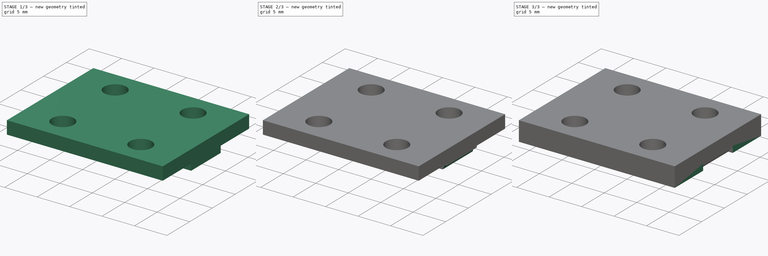
[diagram: build sequence overview — one tinted view per stage of 3, left to right]
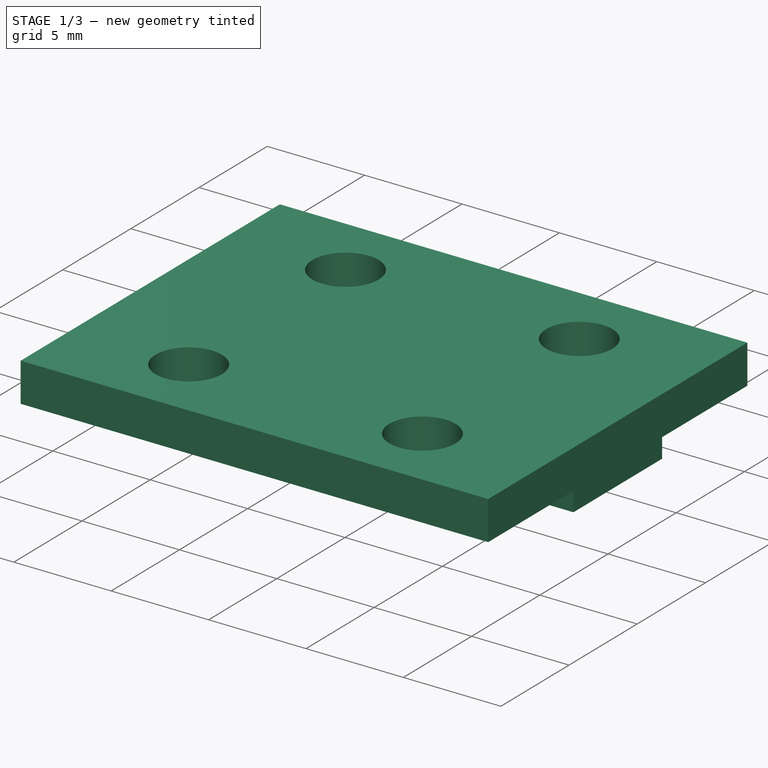
[diagram: stage 1 of 3 — iso view after this stage's code; geometry added in this stage tinted green]
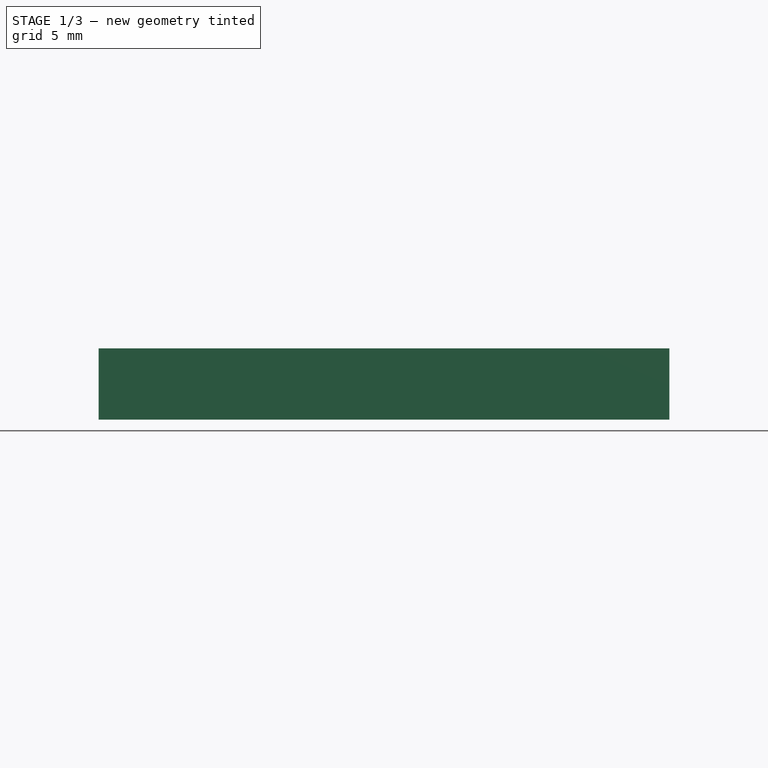
[diagram: stage 1 of 3 — front view after this stage's code; geometry added in this stage tinted green]
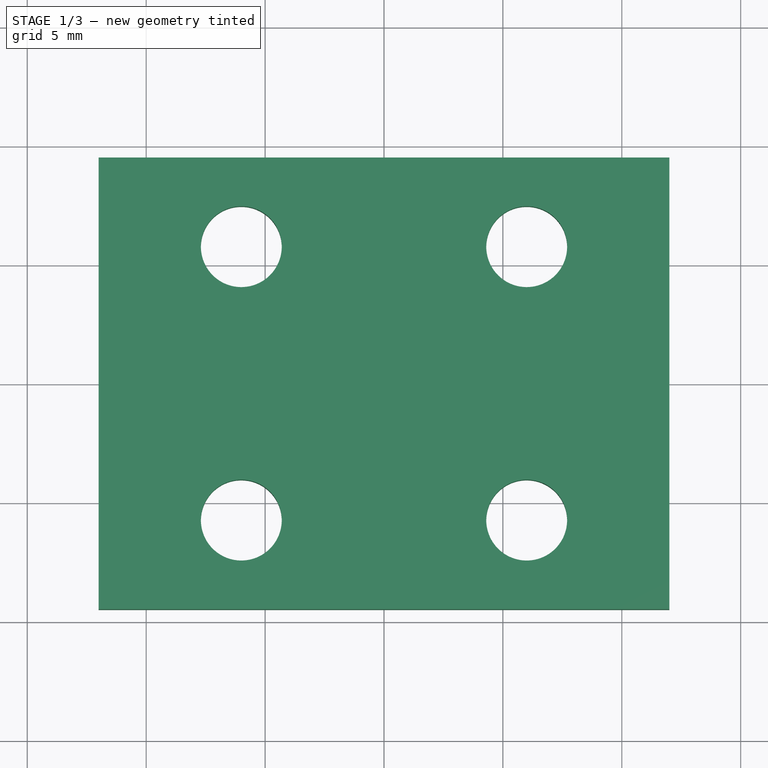
[diagram: stage 1 of 3 — top view after this stage's code; geometry added in this stage tinted green]
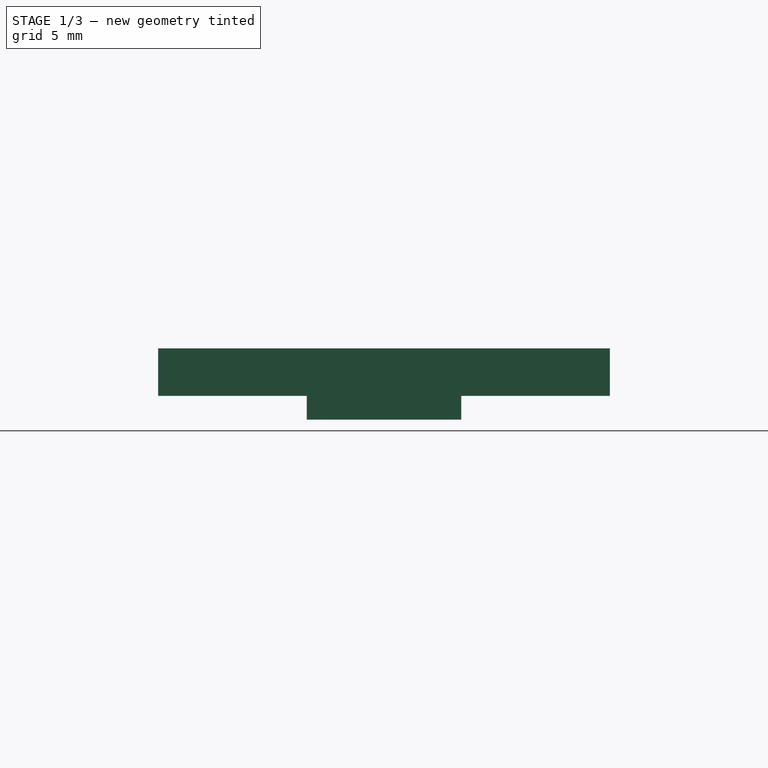
[diagram: stage 1 of 3 — right view after this stage's code; geometry added in this stage tinted green]
FCSTD DOCUMENT  (FreeCAD 0.19R17331 (Git))
Label: trabitas_gt2
License: All rights reserved
LicenseURL: http://en.wikipedia.org/wiki/All_rights_reserved
objects: Sketcher::SketchObject×5, PartDesign::Pocket×3, PartDesign::Pad×2, PartDesign::Body×2, PartDesign::LinearPattern×1
note: 18 computed .brp shape members not serialized (recipe doc carries the construction recipe); baked Part::Feature solids carry a one-line shape summary decoded from their .brp

FEATURE [PartDesign::Body] Body  label="base"
  Group = -> [Sketch,Pad,Sketch001,Pocket]
  Origin = -> Origin
  Placement = pos=(0,-26,0) rot=(0,0,1;0rad)
  Tip = -> Pocket
FEATURE [Sketcher::SketchObject] Sketch002
  MapMode = 5
  Support = -> [XY_Plane001]
  sketch-geometry (18):
    g0: LineSegment [constr] StartX=-7.7 StartY=7.45 StartZ=0 EndX=7.7 EndY=7.45 EndZ=0
    g1: LineSegment [constr] StartX=7.7 StartY=7.45 StartZ=0 EndX=7.7 EndY=-7.45 EndZ=0
    g2: LineSegment [constr] StartX=7.7 StartY=-7.45 StartZ=0 EndX=-7.7 EndY=-7.45 EndZ=0
    g3: LineSegment [constr] StartX=-7.7 StartY=-7.45 StartZ=0 EndX=-7.7 EndY=7.45 EndZ=0
    g4: Circle CenterX=-6 CenterY=5.75 CenterZ=0 NormalX=0 NormalY=0 NormalZ=1 AngleXU=0 Radius=1.7
    g5: Circle CenterX=6 CenterY=5.75 CenterZ=0 NormalX=0 NormalY=0 NormalZ=1 AngleXU=0 Radius=1.7
    g6: Circle CenterX=-6 CenterY=-5.75 CenterZ=0 NormalX=0 NormalY=0 NormalZ=1 AngleXU=0 Radius=1.7
    g7: Circle CenterX=6 CenterY=-5.75 CenterZ=0 NormalX=0 NormalY=0 NormalZ=1 AngleXU=0 Radius=1.7
    g8: LineSegment StartX=-12 StartY=9.5 StartZ=0 EndX=12 EndY=9.5 EndZ=0
    g9: LineSegment StartX=12 StartY=9.5 StartZ=0 EndX=12 EndY=-9.5 EndZ=0
    g10: LineSegment StartX=12 StartY=-9.5 StartZ=0 EndX=-12 EndY=-9.5 EndZ=0
    g11: LineSegment StartX=-12 StartY=-9.5 StartZ=0 EndX=-12 EndY=9.5 EndZ=0
    g12: LineSegment [constr] StartX=-12 StartY=9.5 StartZ=0 EndX=12 EndY=-9.5 EndZ=0
    g13: LineSegment [constr] StartX=12 StartY=9.5 StartZ=0 EndX=-12 EndY=-9.5 EndZ=0
    g14: LineSegment [constr] StartX=-7.7 StartY=7.45 StartZ=0 EndX=7.7 EndY=-7.45 EndZ=0
    g15: LineSegment [constr] StartX=-7.7 StartY=-7.45 StartZ=0 EndX=7.7 EndY=7.45 EndZ=0
    g16: GeomPoint X=0 Y=0 Z=0
    g17: GeomPoint X=0 Y=0 Z=0
  constraints (46):
    c: Coincident(g0,g1)
    c: Coincident(g1,g2)
    c: Coincident(g2,g3)
    c: Coincident(g3,g0)
    c: Horizontal(g0)
    c: Horizontal(g2)
    c: Vertical(g1)
    c: Vertical(g3)
    c: DistanceX(g0,g0) = 15.4
    c: DistanceY(g1,g1) = 14.9
    c: Tangent(g4,g3)
    c: Tangent(g4,g0)
    c: Tangent(g5,g1)
    c: Tangent(g5,g0)
    c: Tangent(g6,g2)
    c: Tangent(g6,g3)
    c: Tangent(g1,g7)
    c: Tangent(g7,g2)
    c: Equal(g6,g7)
    c: Equal(g7,g5)
    c: Equal(g5,g4)
    c: Diameter(g4) = 3.4
    c: Coincident(g8,g9)
    c: Coincident(g9,g10)
    c: Coincident(g10,g11)
    c: Coincident(g11,g8)
    c: Horizontal(g8)
    c: Horizontal(g10)
    c: Vertical(g9)
    c: Vertical(g11)
    c: DistanceX(g8,g8) = 24
    c: DistanceY(g9,g9) = 19
    c: Coincident(g12,g8)
    c: Coincident(g12,g9)
    c: Coincident(g13,g8)
    c: Coincident(g13,g10)
    c: Coincident(g14,g0)
    c: Coincident(g14,g1)
    c: Coincident(g15,g2)
    c: Coincident(g15,g0)
    c: PointOnObject(g16,g15)
    c: PointOnObject(g17,g13)
    c: PointOnObject(g17,g12)
    c: PointOnObject(g16,g14)
    c: Coincident(g16,g17)
    c: Coincident(g16,g-1)
FEATURE [PartDesign::Pad] Pad001
  Length = 3
  Length2 = 100
  Profile = -> Sketch002
  Type = 0
FEATURE [Sketcher::SketchObject] Sketch003
  MapMode = 5
  Support = -> [XY_Plane001]
  sketch-geometry (20):
    g0: LineSegment StartX=-12 StartY=9.5 StartZ=0 EndX=12 EndY=9.5 EndZ=0
    g1: LineSegment [constr] StartX=12 StartY=9.5 StartZ=0 EndX=12 EndY=-9.5 EndZ=0
    g2: LineSegment StartX=12 StartY=-9.5 StartZ=0 EndX=-12 EndY=-9.5 EndZ=0
    g3: LineSegment [constr] StartX=-12 StartY=-9.5 StartZ=0 EndX=-12 EndY=9.5 EndZ=0
    g4: LineSegment [constr] StartX=-12 StartY=9.5 StartZ=0 EndX=12 EndY=-9.5 EndZ=0
    g5: LineSegment [constr] StartX=12 StartY=9.5 StartZ=0 EndX=-12 EndY=-9.5 EndZ=0
    g6: GeomPoint X=0 Y=0 Z=0
    g7: GeomPoint X=0 Y=0 Z=0
    g8: LineSegment StartX=-12 StartY=3.25 StartZ=0 EndX=12 EndY=3.25 EndZ=0
    g9: LineSegment [constr] StartX=12 StartY=3.25 StartZ=0 EndX=12 EndY=-3.25 EndZ=0
    g10: LineSegment StartX=12 StartY=-3.25 StartZ=0 EndX=-12 EndY=-3.25 EndZ=0
    g11: LineSegment [constr] StartX=-12 StartY=-3.25 StartZ=0 EndX=-12 EndY=3.25 EndZ=0
    g12: LineSegment [constr] StartX=-12 StartY=3.25 StartZ=0 EndX=12 EndY=-3.25 EndZ=0
    g13: LineSegment [constr] StartX=12 StartY=3.25 StartZ=0 EndX=-12 EndY=-3.25 EndZ=0
    g14: GeomPoint X=0 Y=0 Z=0
    g15: GeomPoint X=0 Y=0 Z=0
    g16: LineSegment StartX=-12 StartY=9.5 StartZ=0 EndX=-12 EndY=3.25 EndZ=0
    g17: LineSegment StartX=-12 StartY=-3.25 StartZ=0 EndX=-12 EndY=-9.5 EndZ=0
    g18: LineSegment StartX=12 StartY=-9.5 StartZ=0 EndX=12 EndY=-3.25 EndZ=0
    g19: LineSegment StartX=12 StartY=3.25 StartZ=0 EndX=12 EndY=9.5 EndZ=0
  constraints (44):
    c: Coincident(g0,g1)
    c: Coincident(g1,g2)
    c: Coincident(g2,g3)
    c: Coincident(g3,g0)
    c: Horizontal(g0)
    c: Horizontal(g2)
    c: Vertical(g1)
    c: Vertical(g3)
    c: DistanceX(g0,g0) = 24
    c: DistanceY(g1,g1) = 19
    c: Coincident(g4,g0)
    c: Coincident(g4,g1)
    c: Coincident(g5,g0)
    c: Coincident(g5,g2)
    c: PointOnObject(g7,g5)
    c: PointOnObject(g7,g4)
    c: Coincident(g6,g7)
    c: Coincident(g6,g-1)
    c: Coincident(g8,g9)
    c: Coincident(g9,g10)
    c: Coincident(g10,g11)
    c: Coincident(g11,g8)
    c: Horizontal(g8)
    c: Horizontal(g10)
    c: Vertical(g9)
    c: Vertical(g11)
    c: Equal(g0,g8) = 24
    c: Coincident(g12,g8)
    c: Coincident(g12,g9)
    c: Coincident(g13,g8)
    c: Coincident(g13,g10)
    c: PointOnObject(g15,g13)
    c: PointOnObject(g15,g12)
    c: Coincident(g14,g15)
    c: DistanceY(g9,g9) = 6.5
    c: Coincident(g14,g6)
    c: Coincident(g16,g0)
    c: Coincident(g16,g8)
    c: Coincident(g17,g10)
    c: Coincident(g17,g2)
    c: Coincident(g18,g2)
    c: Coincident(g18,g10)
    c: Coincident(g19,g8)
    c: Coincident(g19,g0)
FEATURE [PartDesign::Pocket] Pocket001
  BaseFeature = -> Pad001
  Length = 1
  Length2 = 100
  Profile = -> Sketch003
  Reversed = true
  Type = 0
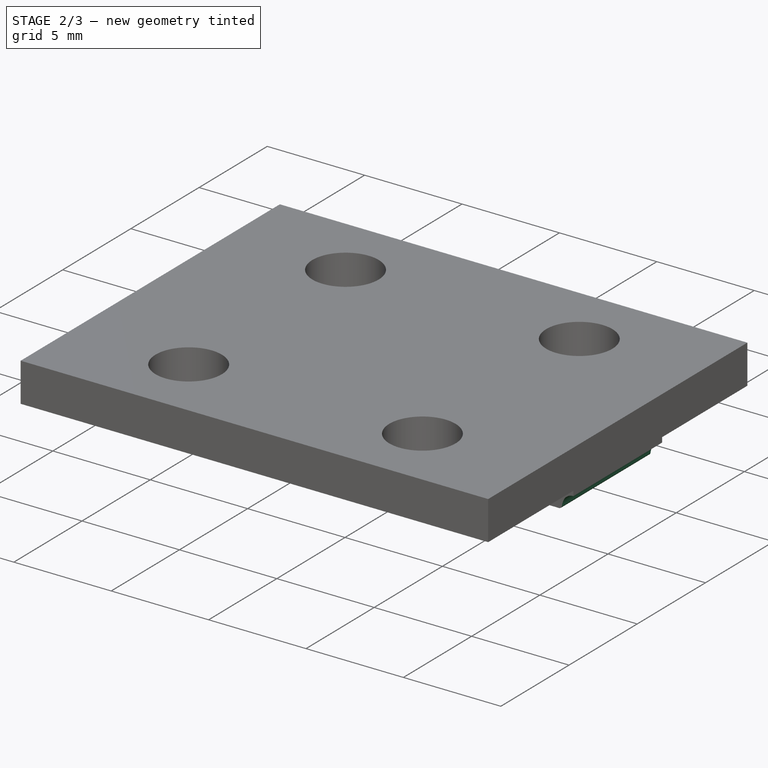
[diagram: stage 2 of 3 — iso view after this stage's code; geometry added in this stage tinted green]
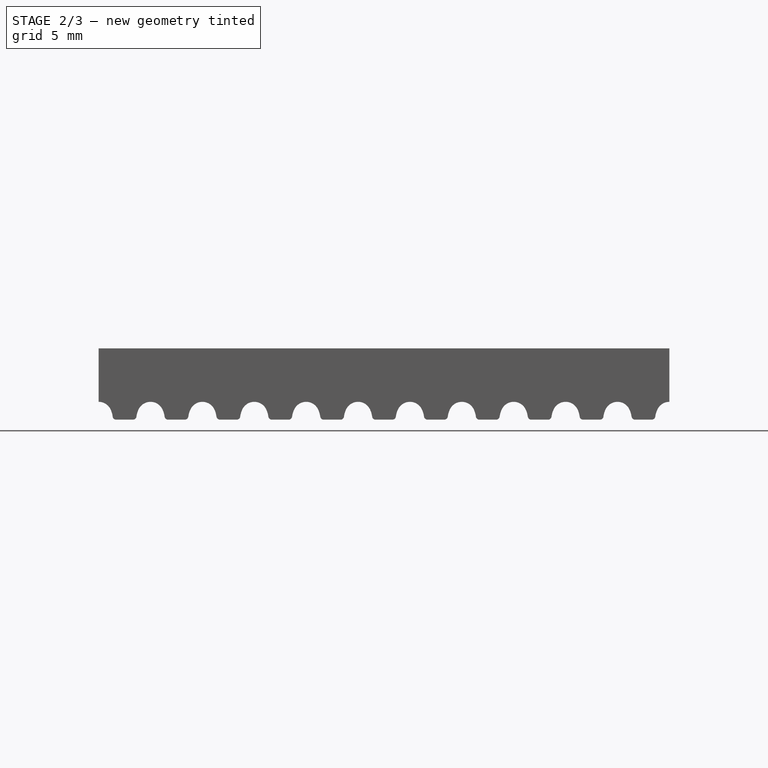
[diagram: stage 2 of 3 — front view after this stage's code; geometry added in this stage tinted green]
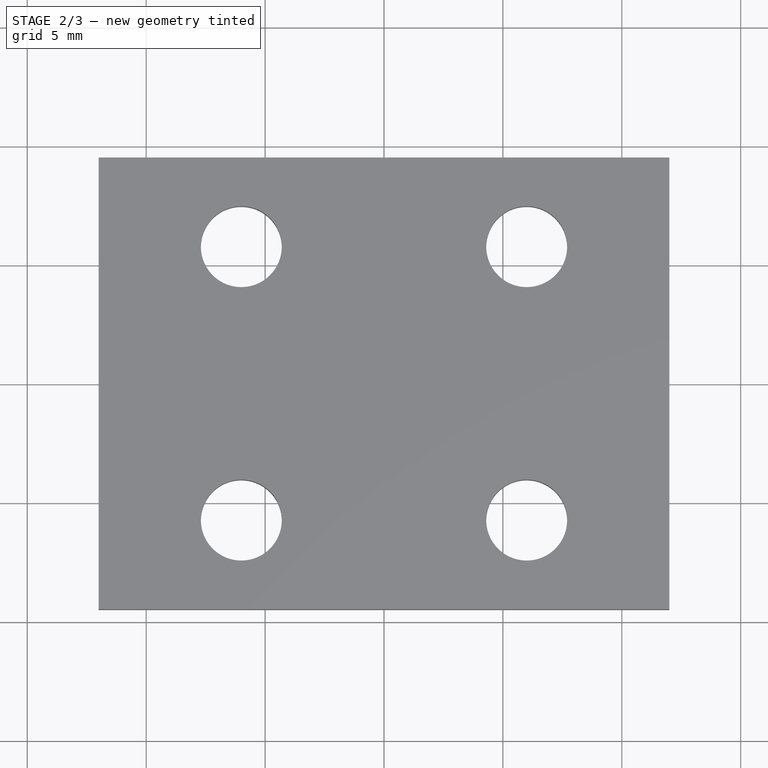
[diagram: stage 2 of 3 — top view after this stage's code; geometry added in this stage tinted green]
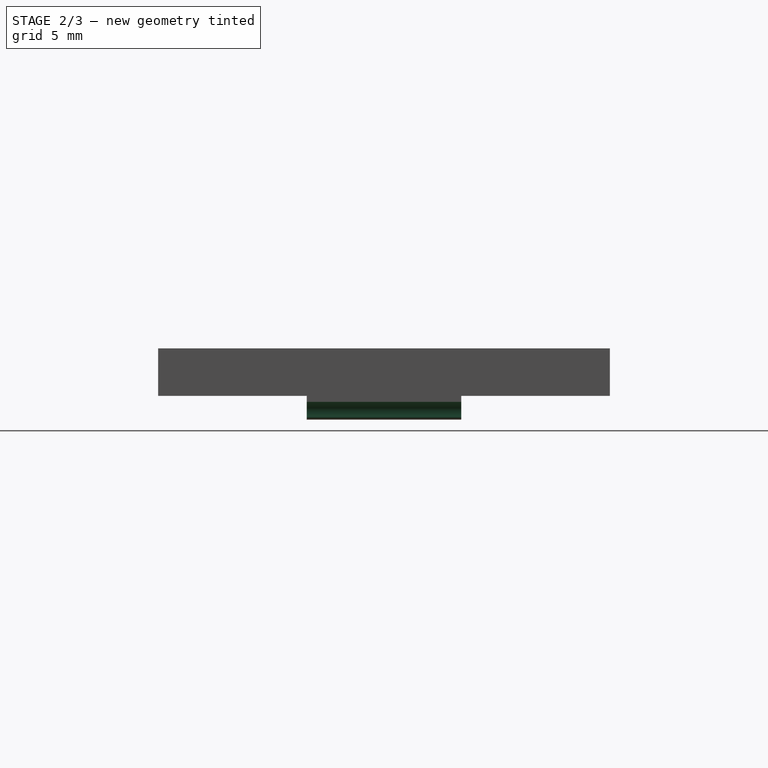
[diagram: stage 2 of 3 — right view after this stage's code; geometry added in this stage tinted green]
FEATURE [Sketcher::SketchObject] Sketch004  label="cuenco_correa"
  ExternalGeometry = -> [Pocket001]
  MapMode = 5
  Placement = pos=(0,0,0) rot=(1,0,0;1.5708rad)
  Support = -> [XZ_Plane001]
  sketch-geometry (12):
    g0: ArcOfCircle CenterX=-12 CenterY=0.195 CenterZ=0 NormalX=0 NormalY=0 NormalZ=1 AngleXU=0 Radius=0.555 StartAngle=0.453598 EndAngle=2.68799
    g1: LineSegment [constr] StartX=-11.2598 StartY=0 StartZ=0 EndX=-12.7402 EndY=0 EndZ=0
    g2: LineSegment [constr] StartX=-12 StartY=0 StartZ=0 EndX=-12 EndY=0.75 EndZ=0
    g3: ArcOfCircle CenterX=-12.4 CenterY=0 CenterZ=0 NormalX=0 NormalY=0 NormalZ=1 AngleXU=0 Radius=1 StartAngle=0.130807 EndAngle=0.453598
    g4: ArcOfCircle CenterX=-11.2598 CenterY=0.15 CenterZ=0 NormalX=0 NormalY=0 NormalZ=1 AngleXU=0 Radius=0.15 StartAngle=3.2724 EndAngle=4.71239
    g5: ArcOfCircle CenterX=-11.6 CenterY=0 CenterZ=0 NormalX=0 NormalY=0 NormalZ=1 AngleXU=0 Radius=1 StartAngle=2.68799 EndAngle=3.01079
    g6: ArcOfCircle CenterX=-12.7402 CenterY=0.15 CenterZ=0 NormalX=0 NormalY=0 NormalZ=1 AngleXU=0 Radius=0.15 StartAngle=4.71239 EndAngle=6.15238
    g7: LineSegment StartX=-12.7402 StartY=0 StartZ=0 EndX=-13 EndY=0 EndZ=0
    g8: LineSegment StartX=-11.2598 StartY=0 StartZ=0 EndX=-11 EndY=0 EndZ=0
    g9: LineSegment StartX=-13 StartY=0 StartZ=0 EndX=-13 EndY=-0.63 EndZ=0
    g10: LineSegment StartX=-13 StartY=-0.63 StartZ=0 EndX=-11 EndY=-0.63 EndZ=0
    g11: LineSegment StartX=-11 StartY=-0.63 StartZ=0 EndX=-11 EndY=0 EndZ=0
  constraints (34):
    c: Radius(g0) = 0.555
    c: PointOnObject(g2,g1)
    c: PointOnObject(g2,g0)
    c: Vertical(g2)
    c: PointOnObject(g0,g2)
    c: DistanceY(g2,g2) = 0.75
    c: PointOnObject(g3,g1)
    c: DistanceX(g3,g2) = 0.4
    c: Tangent(g3,g0) = -1.5708
    c: Tangent(g4,g3) = 1.5708
    c: PointOnObject(g5,g1)
    c: DistanceX(g2,g5) = 0.4
    c: Tangent(g5,g0) = -1.5708
    c: Coincident(g7,g1)
    c: Tangent(g6,g7) = 1.5708
    c: Tangent(g6,g5) = 1.5708
    c: Radius(g4) = 0.15
    c: Radius(g6) = 0.15
    c: Coincident(g1,g6)
    c: Horizontal(g7)
    c: Symmetric(g7,g8,g2)
    c: Horizontal(g1)
    c: DistanceX(g7,g8) = 2
    c: Vertical(g9)
    c: Coincident(g9,g10)
    c: Horizontal(g10)
    c: Coincident(g10,g11)
    c: Coincident(g11,g8)
    c: Vertical(g11)
    c: DistanceY(g11,g11) = 0.63
    c: Tangent(g8,g4) = -1.5708
    c: Coincident(g4,g1)
    c: Coincident(g9,g7)
    c: Coincident(g2,g-3)
FEATURE [PartDesign::Pocket] Pocket002  label="pocket_cuencos_correa"
  BaseFeature = -> Pocket001
  Length = 5
  Length2 = 100
  Midplane = true
  Profile = -> Sketch004
  Type = 1
FEATURE [PartDesign::LinearPattern] LinearPattern  label="pocket_cuencos_correa_linear_pattern"
  BaseFeature = -> Pocket002
  Direction = -> Sketch004 [H_Axis]
  Length = 24
  Occurrences = 12
  Originals = -> [Pocket002]
FEATURE [PartDesign::Body] Body001  label="tapa"
  Group = -> [Sketch002,Pad001,Sketch003,Pocket001,Sketch004,Pocket002,LinearPattern]
  Origin = -> Origin001
  Tip = -> LinearPattern
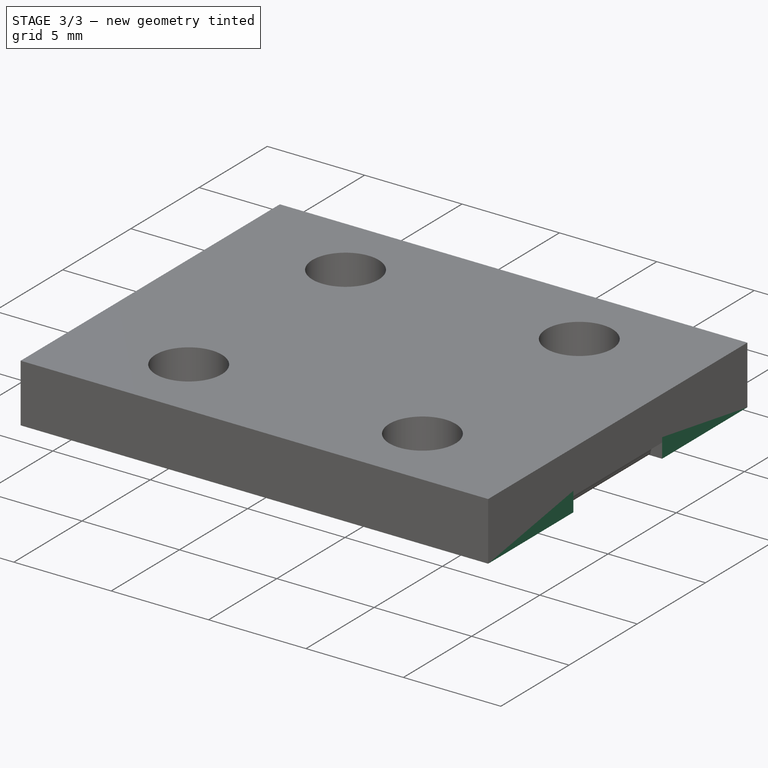
[diagram: stage 3 of 3 — iso view after this stage's code; geometry added in this stage tinted green]
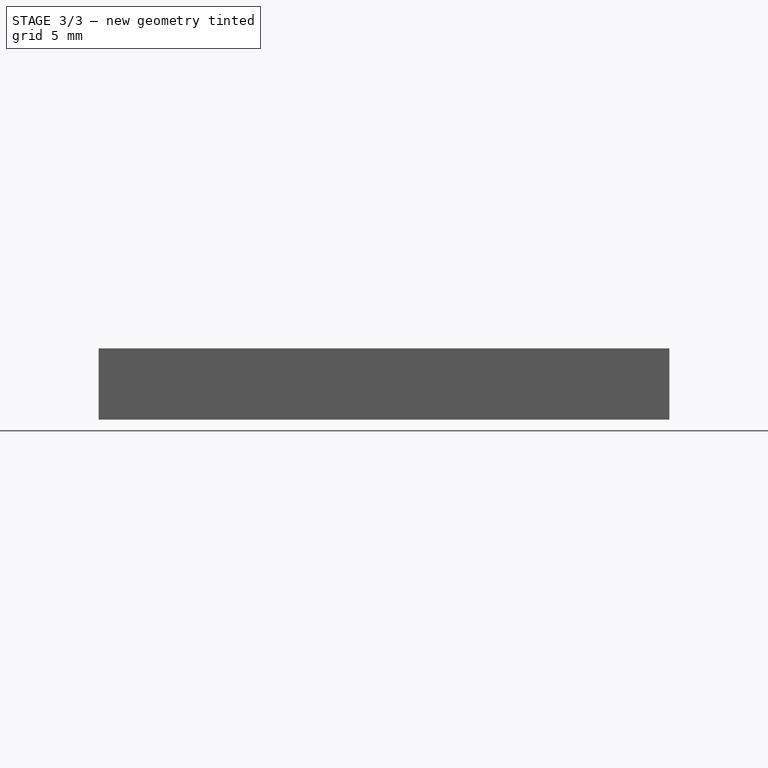
[diagram: stage 3 of 3 — front view after this stage's code; geometry added in this stage tinted green]
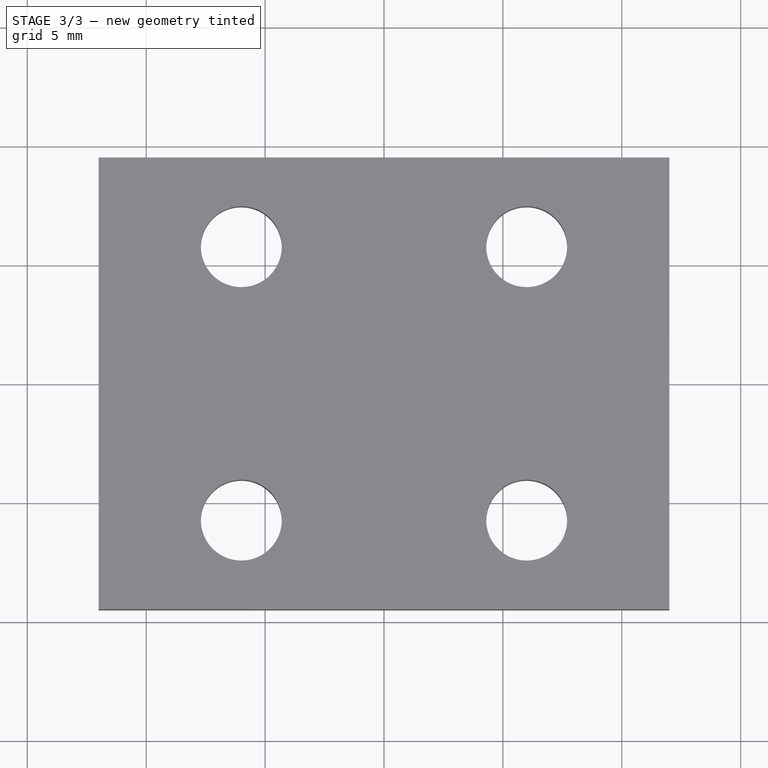
[diagram: stage 3 of 3 — top view after this stage's code; geometry added in this stage tinted green]
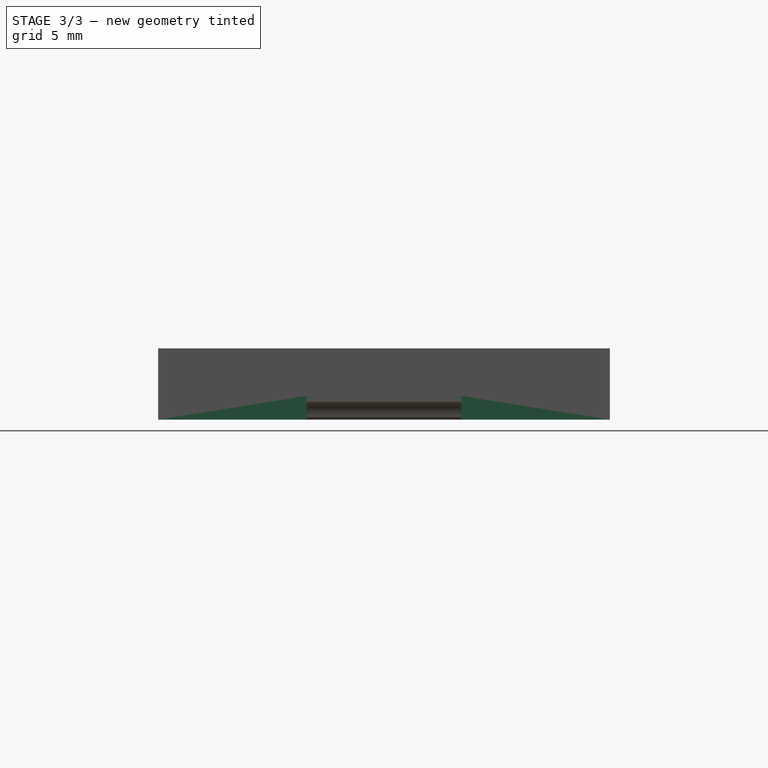
[diagram: stage 3 of 3 — right view after this stage's code; geometry added in this stage tinted green]
FEATURE [Sketcher::SketchObject] Sketch
  MapMode = 5
  Support = -> [XY_Plane]
  sketch-geometry (18):
    g0: LineSegment [constr] StartX=-7.7 StartY=7.45 StartZ=0 EndX=7.7 EndY=7.45 EndZ=0
    g1: LineSegment [constr] StartX=7.7 StartY=7.45 StartZ=0 EndX=7.7 EndY=-7.45 EndZ=0
    g2: LineSegment [constr] StartX=7.7 StartY=-7.45 StartZ=0 EndX=-7.7 EndY=-7.45 EndZ=0
    g3: LineSegment [constr] StartX=-7.7 StartY=-7.45 StartZ=0 EndX=-7.7 EndY=7.45 EndZ=0
    g4: Circle CenterX=-6 CenterY=5.75 CenterZ=0 NormalX=0 NormalY=0 NormalZ=1 AngleXU=0 Radius=1.7
    g5: Circle CenterX=6 CenterY=5.75 CenterZ=0 NormalX=0 NormalY=0 NormalZ=1 AngleXU=0 Radius=1.7
    g6: Circle CenterX=-6 CenterY=-5.75 CenterZ=0 NormalX=0 NormalY=0 NormalZ=1 AngleXU=0 Radius=1.7
    g7: Circle CenterX=6 CenterY=-5.75 CenterZ=0 NormalX=0 NormalY=0 NormalZ=1 AngleXU=0 Radius=1.7
    g8: LineSegment StartX=-12 StartY=9.5 StartZ=0 EndX=12 EndY=9.5 EndZ=0
    g9: LineSegment StartX=12 StartY=9.5 StartZ=0 EndX=12 EndY=-9.5 EndZ=0
    g10: LineSegment StartX=12 StartY=-9.5 StartZ=0 EndX=-12 EndY=-9.5 EndZ=0
    g11: LineSegment StartX=-12 StartY=-9.5 StartZ=0 EndX=-12 EndY=9.5 EndZ=0
    g12: LineSegment [constr] StartX=-12 StartY=9.5 StartZ=0 EndX=12 EndY=-9.5 EndZ=0
    g13: LineSegment [constr] StartX=12 StartY=9.5 StartZ=0 EndX=-12 EndY=-9.5 EndZ=0
    g14: LineSegment [constr] StartX=-7.7 StartY=7.45 StartZ=0 EndX=7.7 EndY=-7.45 EndZ=0
    g15: LineSegment [constr] StartX=-7.7 StartY=-7.45 StartZ=0 EndX=7.7 EndY=7.45 EndZ=0
    g16: GeomPoint X=0 Y=0 Z=0
    g17: GeomPoint X=0 Y=0 Z=0
  constraints (46):
    c: Coincident(g0,g1)
    c: Coincident(g1,g2)
    c: Coincident(g2,g3)
    c: Coincident(g3,g0)
    c: Horizontal(g0)
    c: Horizontal(g2)
    c: Vertical(g1)
    c: Vertical(g3)
    c: DistanceX(g0,g0) = 15.4
    c: DistanceY(g1,g1) = 14.9
    c: Tangent(g4,g3)
    c: Tangent(g4,g0)
    c: Tangent(g5,g1)
    c: Tangent(g5,g0)
    c: Tangent(g6,g2)
    c: Tangent(g6,g3)
    c: Tangent(g1,g7)
    c: Tangent(g7,g2)
    c: Equal(g6,g7)
    c: Equal(g7,g5)
    c: Equal(g5,g4)
    c: Diameter(g4) = 3.4
    c: Coincident(g8,g9)
    c: Coincident(g9,g10)
    c: Coincident(g10,g11)
    c: Coincident(g11,g8)
    c: Horizontal(g8)
    c: Horizontal(g10)
    c: Vertical(g9)
    c: Vertical(g11)
    c: DistanceX(g8,g8) = 24
    c: DistanceY(g9,g9) = 19
    c: Coincident(g12,g8)
    c: Coincident(g12,g9)
    c: Coincident(g13,g8)
    c: Coincident(g13,g10)
    c: Coincident(g14,g0)
    c: Coincident(g14,g1)
    c: Coincident(g15,g2)
    c: Coincident(g15,g0)
    c: PointOnObject(g16,g15)
    c: PointOnObject(g17,g13)
    c: PointOnObject(g17,g12)
    c: PointOnObject(g16,g14)
    c: Coincident(g16,g17)
    c: Coincident(g16,g-1)
FEATURE [PartDesign::Pad] Pad
  Length = 3
  Length2 = 100
  Profile = -> Sketch
  Type = 0
FEATURE [Sketcher::SketchObject] Sketch001
  MapMode = 5
  Support = -> [XY_Plane]
  sketch-geometry (8):
    g0: LineSegment StartX=-12 StartY=3.25 StartZ=0 EndX=12 EndY=3.25 EndZ=0
    g1: LineSegment StartX=12 StartY=3.25 StartZ=0 EndX=12 EndY=-3.25 EndZ=0
    g2: LineSegment StartX=12 StartY=-3.25 StartZ=0 EndX=-12 EndY=-3.25 EndZ=0
    g3: LineSegment StartX=-12 StartY=-3.25 StartZ=0 EndX=-12 EndY=3.25 EndZ=0
    g4: LineSegment [constr] StartX=-12 StartY=3.25 StartZ=0 EndX=12 EndY=-3.25 EndZ=0
    g5: LineSegment [constr] StartX=12 StartY=3.25 StartZ=0 EndX=-12 EndY=-3.25 EndZ=0
    g6: GeomPoint X=0 Y=0 Z=0
    g7: GeomPoint X=0 Y=0 Z=0
  constraints (18):
    c: Coincident(g0,g1)
    c: Coincident(g1,g2)
    c: Coincident(g2,g3)
    c: Coincident(g3,g0)
    c: Horizontal(g0)
    c: Horizontal(g2)
    c: Vertical(g1)
    c: Vertical(g3)
    c: DistanceX(g0,g0) = 24
    c: DistanceY(g1,g1) = 6.5
    c: Coincident(g4,g0)
    c: Coincident(g4,g1)
    c: Coincident(g5,g0)
    c: Coincident(g5,g2)
    c: PointOnObject(g7,g5)
    c: PointOnObject(g7,g4)
    c: Coincident(g6,g7)
    c: Coincident(g6,g-1)
FEATURE [PartDesign::Pocket] Pocket
  BaseFeature = -> Pad
  Length = 1
  Length2 = 100
  Profile = -> Sketch001
  Reversed = true
  Type = 0
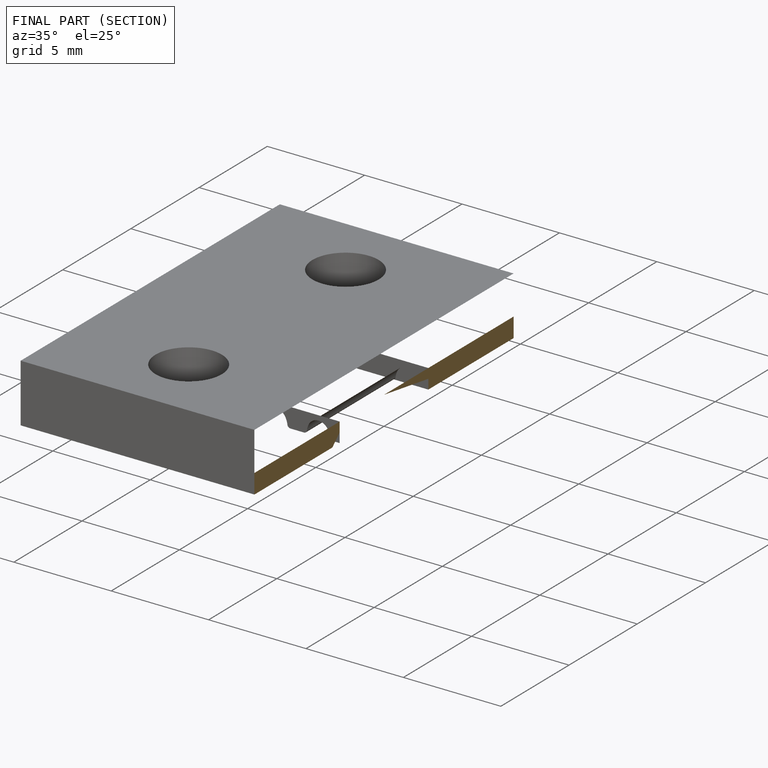
[diagram: finished part — half-section view (interior)]
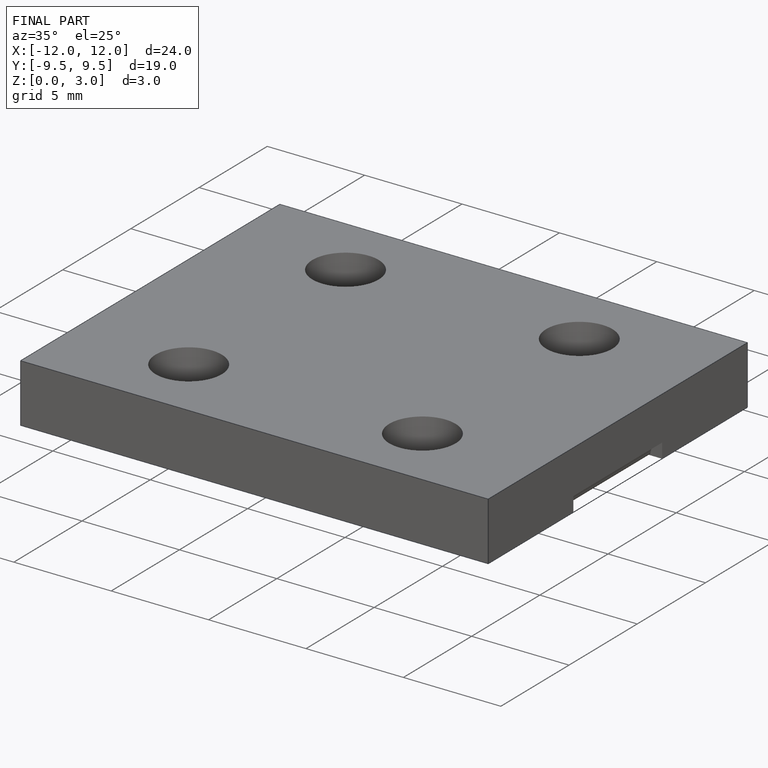
[diagram: finished part — iso view with bounding-box wireframe]
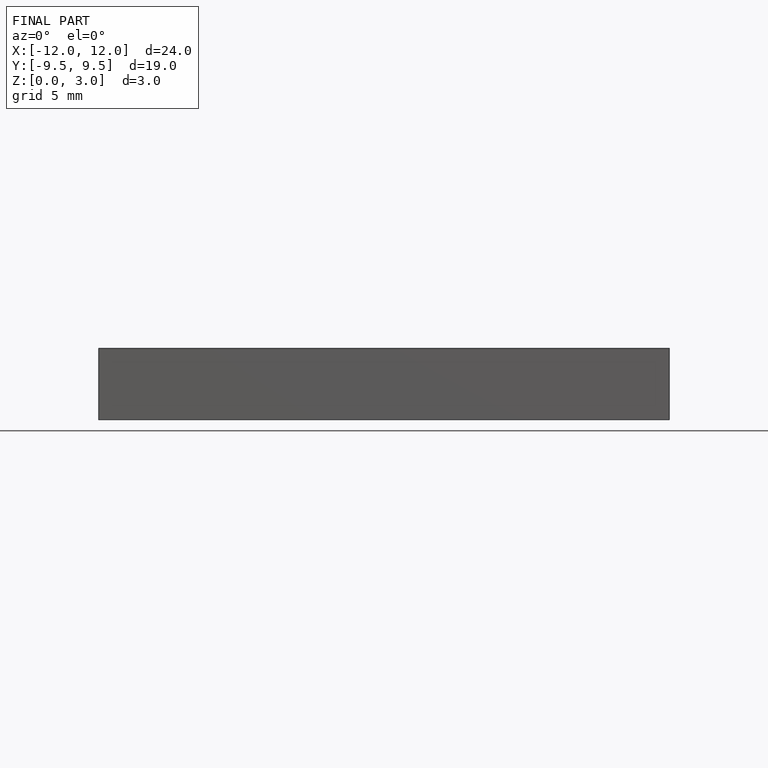
[diagram: finished part — front view with bounding-box wireframe]
